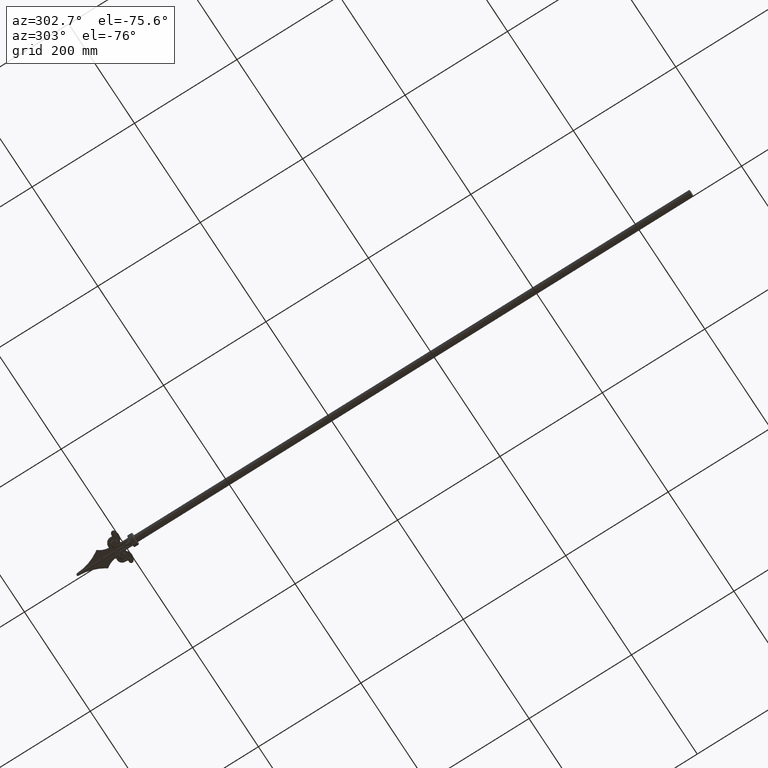
[diagram: clean part render]
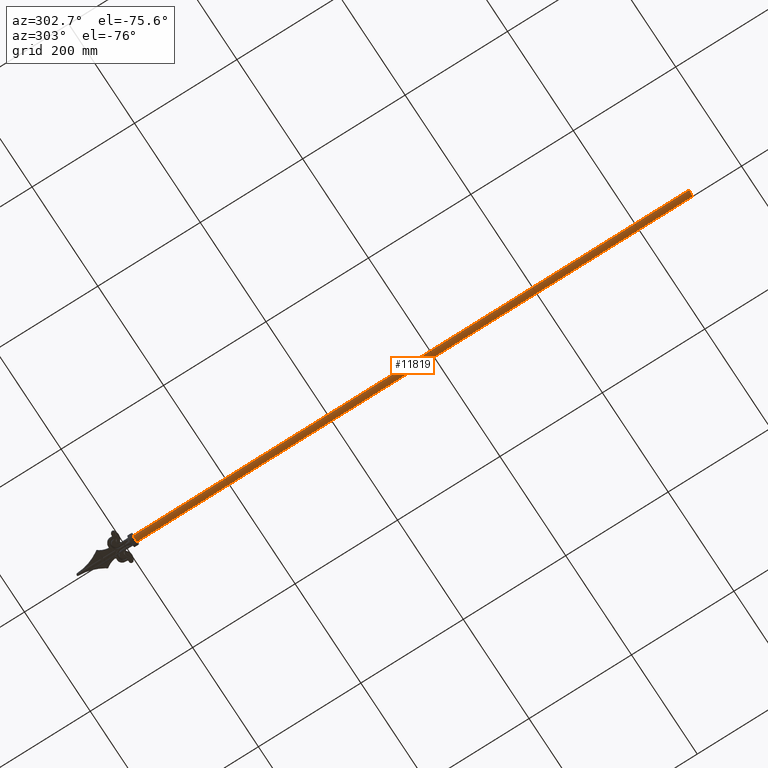
[diagram: same view with one face highlighted and labeled with its STEP entity id]
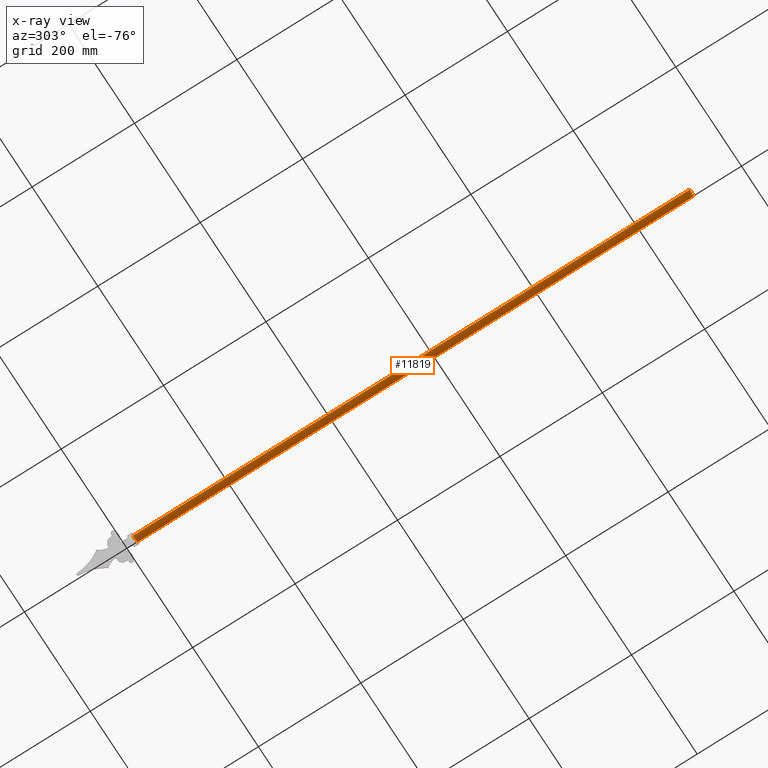
[diagram: x-ray of the same camera — body ghosted, the highlighted face saturated]
A machine part, auxiliary view. The second image highlights one B-rep face of the part: STEP entity #11819.
The next image is the same camera in x-ray: the body ghosted, the highlighted face saturated — about 0% of this face is hidden behind the body in this view.
In plain terms, the highlighted cylindrical surface (bore or boss wall) has radius 6 mm, axis along (-0, 1, -0).
Its self-contained STEP definition (entity closure, byte-faithful):
#935 = CARTESIAN_POINT ( 'NONE',  ( 0.000000000000000000, -16.50000000000000000, -6.000000000000000888 ) ) ;
#3235 = EDGE_CURVE ( 'NONE', #14136, #14136, #8147, .T. ) ;
#3459 = ORIENTED_EDGE ( 'NONE', *, *, #3235, .F. ) ;
#3800 = EDGE_LOOP ( 'NONE', ( #3459 ) ) ;
#4363 = CARTESIAN_POINT ( 'NONE',  ( 0.000000000000000000, -1101.999999999999773, -6.000000000000000888 ) ) ;
#5138 = FACE_OUTER_BOUND ( 'NONE', #17395, .T. ) ;
#6653 = CARTESIAN_POINT ( 'NONE',  ( 0.000000000000000000, -16.50000000000000000, 0.000000000000000000 ) ) ;
#6878 = DIRECTION ( 'NONE',  ( 0.000000000000000000, -1.000000000000000000, 0.000000000000000000 ) ) ;
#7058 = CIRCLE ( 'NONE', #9336, 6.000000000000000888 ) ;
#8147 = CIRCLE ( 'NONE', #19840, 6.000000000000000888 ) ;
#8308 = DIRECTION ( 'NONE',  ( 0.000000000000000000, 0.000000000000000000, -1.000000000000000000 ) ) ;
#8996 = DIRECTION ( 'NONE',  ( 0.000000000000000000, 0.000000000000000000, -1.000000000000000000 ) ) ;
#9336 = AXIS2_PLACEMENT_3D ( 'NONE', #6653, #6878, #8308 ) ;
#9626 = DIRECTION ( 'NONE',  ( -0.000000000000000000, 1.000000000000000000, -0.000000000000000000 ) ) ;
#11819 = ADVANCED_FACE ( 'NONE', ( #16354, #5138 ), #17420, .T. ) ;
#12802 = VERTEX_POINT ( 'NONE', #935 ) ;
#13224 = AXIS2_PLACEMENT_3D ( 'NONE', #21416, #9626, #13304 ) ;
#13304 = DIRECTION ( 'NONE',  ( 0.000000000000000000, 0.000000000000000000, 1.000000000000000000 ) ) ;
#14136 = VERTEX_POINT ( 'NONE', #4363 ) ;
#16354 = FACE_OUTER_BOUND ( 'NONE', #3800, .T. ) ;
#17395 = EDGE_LOOP ( 'NONE', ( #20499 ) ) ;
#17420 = CYLINDRICAL_SURFACE ( 'NONE', #13224, 6.000000000000000888 ) ;
#17525 = CARTESIAN_POINT ( 'NONE',  ( 0.000000000000000000, -1101.999999999999773, 0.000000000000000000 ) ) ;
#19840 = AXIS2_PLACEMENT_3D ( 'NONE', #17525, #20906, #8996 ) ;
#20223 = EDGE_CURVE ( 'NONE', #12802, #12802, #7058, .T. ) ;
#20499 = ORIENTED_EDGE ( 'NONE', *, *, #20223, .T. ) ;
#20906 = DIRECTION ( 'NONE',  ( 0.000000000000000000, -1.000000000000000000, 0.000000000000000000 ) ) ;
#21416 = CARTESIAN_POINT ( 'NONE',  ( 0.000000000000000000, -1101.999999999999773, 0.000000000000000000 ) ) ;